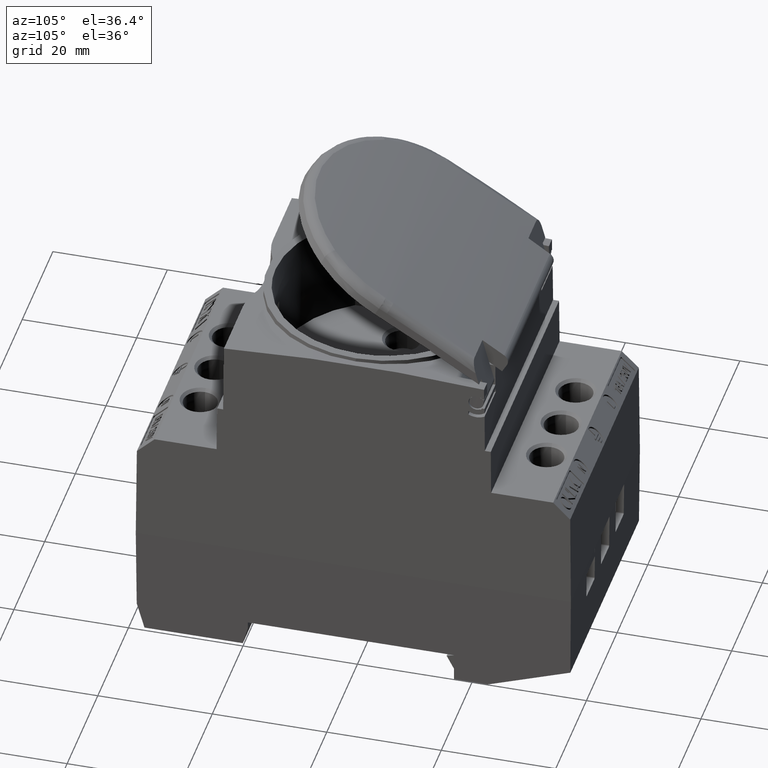
[diagram: clean part render]
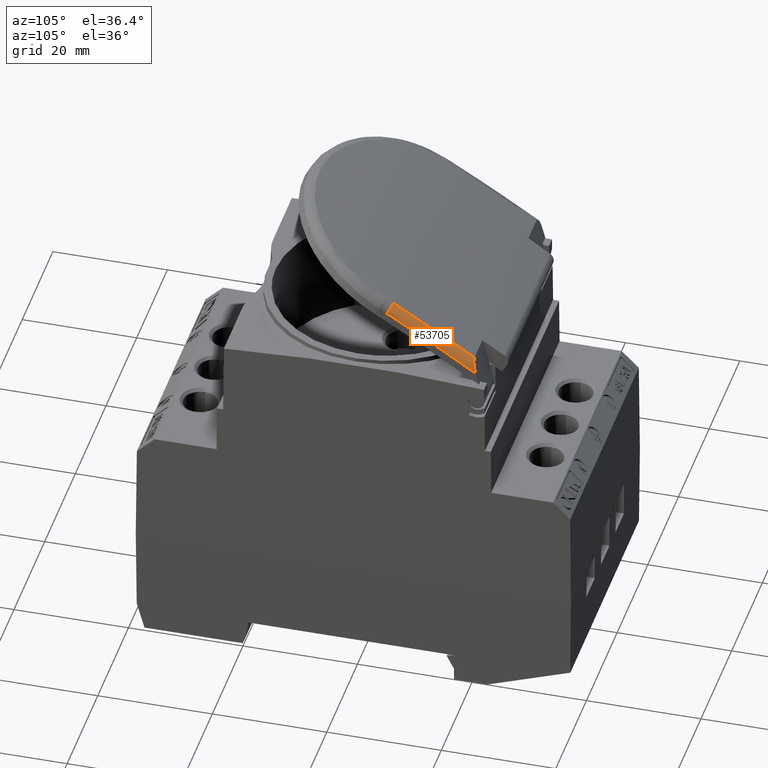
[diagram: same view with one face highlighted and labeled with its STEP entity id]
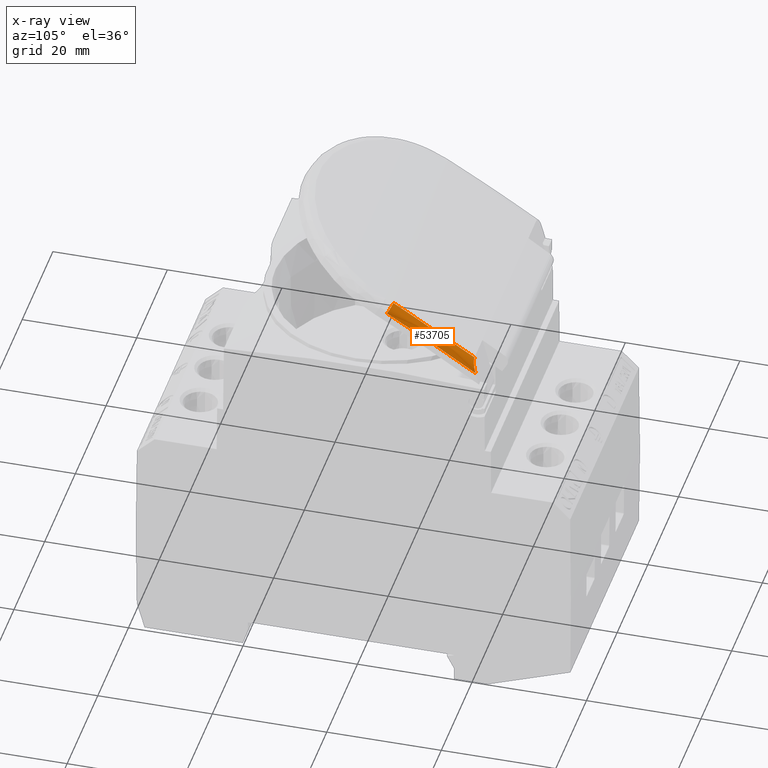
[diagram: x-ray of the same camera — body ghosted, the highlighted face saturated]
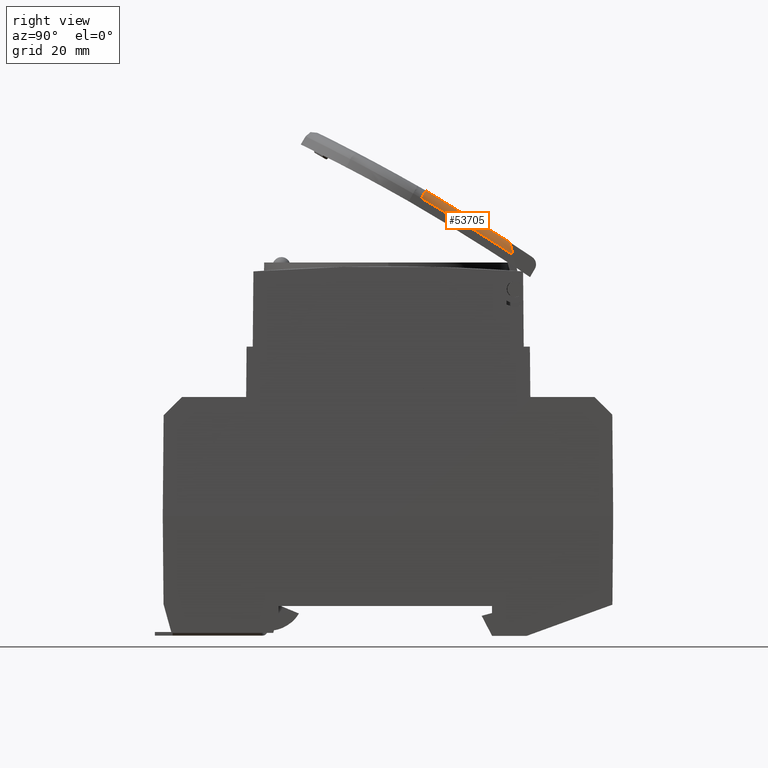
[diagram: same view with one face highlighted and labeled with its STEP entity id]
A machine part, auxiliary view. The second image highlights one B-rep face of the part: STEP entity #53705.
The next image is the same camera in x-ray: the body ghosted, the highlighted face saturated — about 0% of this face is hidden behind the body in this view.
A second angle (right view) of the same face is appended — the face is thin or edge-on in the first view.
In plain terms, the highlighted face is a freeform B-spline surface patch.
Its self-contained STEP definition (entity closure, byte-faithful):
#1464 = EDGE_LOOP ( 'NONE', ( #44498, #44500, #44546, #44497 ) ) ;
#1836 = AXIS2_PLACEMENT_3D ( 'NONE', #9199, #9192, #9179 ) ;
#1881 = CIRCLE ( 'NONE', #1836, 1.500000000000008700 ) ;
#3327 = B_SPLINE_CURVE_WITH_KNOTS ( 'NONE', 3,
 ( #49380, #49396, #49403, #49382 ),
 .UNSPECIFIED., .F., .F.,
 ( 4, 4 ),
 ( 0.0000000000000000000, 1.000000000000000000 ),
 .UNSPECIFIED. ) ;
#3363 = B_SPLINE_CURVE_WITH_KNOTS ( 'NONE', 3,
 ( #38545, #38540, #38562, #38558 ),
 .UNSPECIFIED., .F., .F.,
 ( 4, 4 ),
 ( 0.0000000000000000000, 1.000000000000000000 ),
 .UNSPECIFIED. ) ;
#3365 = B_SPLINE_CURVE_WITH_KNOTS ( 'NONE', 3,
 ( #38682, #38690, #38735, #38715, #38717, #38736, #38716, #38722, #38730, #38725, #38737, #38718, #38729, #38719, #38721, #38723, #38720, #38724, #38726, #38727, #38728, #38731, #38732, #38733, #38741, #38755, #38742, #38743, #38748, #38753, #38752, #38758, #38738, #38754, #38750, #38749 ),
 .UNSPECIFIED., .F., .F.,
 ( 4, 2, 2, 2, 1, 2, 2, 2, 2, 1, 1, 1, 2, 2, 2, 2, 1, 1, 2, 2, 4 ),
 ( 0.0000000000000000000, 0.1249999999999825400, 0.1874999999999716600, 0.2187499999999661900, 0.2343749999999633900, 0.2421874999999622800, 0.2499999999999612000, 0.3749999999999284500, 0.4374999999999120100, 0.4687499999999047400, 0.4843749999999010200, 0.4921874999998992500, 0.4960937499998996900, 0.4999999999999001400, 0.6249999999999120700, 0.6874999999999204000, 0.7187499999999242800, 0.7343749999999261700, 0.7421874999999273900, 0.7499999999999286100, 1.000000000000000000 ),
 .UNSPECIFIED. ) ;
#7352 = VERTEX_POINT ( 'NONE', #30980 ) ;
#7382 = VERTEX_POINT ( 'NONE', #30992 ) ;
#9179 = DIRECTION ( 'NONE',  ( 0.0000000000000000000, 0.4999999999997049600, 0.8660254037846089000 ) ) ;
#9192 = DIRECTION ( 'NONE',  ( -1.671779591027735500E-015, 0.8660254037846089000, -0.4999999999997051200 ) ) ;
#9199 = CARTESIAN_POINT ( 'NONE',  ( 20.11149769715314400, 5.567389639894168200, 28.44711598153101300 ) ) ;
#16329 = EDGE_CURVE ( 'NONE', #7352, #7382, #1881, .T. ) ;
#17633 = EDGE_CURVE ( 'NONE', #7352, #36606, #3327, .T. ) ;
#17664 = EDGE_CURVE ( 'NONE', #7382, #36638, #3363, .T. ) ;
#17683 = EDGE_CURVE ( 'NONE', #36638, #36606, #3365, .T. ) ;
#30980 = CARTESIAN_POINT ( 'NONE',  ( 20.11149769715346400, 6.317389639894067900, 29.74615408720781000 ) ) ;
#30992 = CARTESIAN_POINT ( 'NONE',  ( 21.61144058174941000, 5.573934541518228900, 28.45845208367377700 ) ) ;
#32391 = CARTESIAN_POINT ( 'NONE',  ( 21.61624503073570500, 21.07185844936508100, 18.87501810916420600 ) ) ;
#32417 = CARTESIAN_POINT ( 'NONE',  ( 20.11546422260768100, 20.49329404908099400, 21.03424850293953700 ) ) ;
#32611 =( BOUNDED_SURFACE ( )  B_SPLINE_SURFACE ( 3, 2, ( 
 ( #59797, #60425, #60584 ),
 ( #60624, #60697, #60802 ),
 ( #60818, #60820, #60873 ),
 ( #60961, #59748, #59755 ) ),
 .UNSPECIFIED., .F., .F., .F. ) 
 B_SPLINE_SURFACE_WITH_KNOTS ( ( 4, 4 ),
 ( 3, 3 ),
 ( 0.0000000000000000000, 0.06079837920972024100 ),
 ( 0.0000000000000000000, 1.000000000000000000 ),
 .UNSPECIFIED. ) 
 GEOMETRIC_REPRESENTATION_ITEM ( )  RATIONAL_B_SPLINE_SURFACE ( (
 ( 1.000000000000000000, 0.7101853756232864300, 1.000000000000000000),
 ( 1.000000000000000000, 0.7101853756232864300, 1.000000000000000000),
 ( 1.000000000000000000, 0.7101796997576754800, 1.000000000000000000),
 ( 1.000000000000000000, 0.7101796997576754800, 1.000000000000000000) ) ) 
 REPRESENTATION_ITEM ( '' )  SURFACE ( )  );
#36606 = VERTEX_POINT ( 'NONE', #32417 ) ;
#36638 = VERTEX_POINT ( 'NONE', #32391 ) ;
#38540 = CARTESIAN_POINT ( 'NONE',  ( 21.61144058175224800, 10.83486926516407900, 25.42105000441343100 ) ) ;
#38545 = CARTESIAN_POINT ( 'NONE',  ( 21.61144058174941000, 5.573934541518228900, 28.45845208367377700 ) ) ;
#38558 = CARTESIAN_POINT ( 'NONE',  ( 21.61624503073570500, 21.07185844936508100, 18.87501810916420600 ) ) ;
#38562 = CARTESIAN_POINT ( 'NONE',  ( 21.61304304422152700, 16.00398424792255300, 22.22462933301307000 ) ) ;
#38682 = CARTESIAN_POINT ( 'NONE',  ( 21.61624503073570500, 21.07185844936508100, 18.87501810916420600 ) ) ;
#38690 = CARTESIAN_POINT ( 'NONE',  ( 21.61582752215776900, 21.05434563870697700, 18.94037200634393500 ) ) ;
#38715 = CARTESIAN_POINT ( 'NONE',  ( 21.59708378592926100, 20.98219996765944400, 19.20855909315105200 ) ) ;
#38716 = CARTESIAN_POINT ( 'NONE',  ( 21.56531885854216700, 20.92584450764114800, 19.42054550328121100 ) ) ;
#38717 = CARTESIAN_POINT ( 'NONE',  ( 21.58926823269134900, 20.96474511656315100, 19.27427544248018200 ) ) ;
#38718 = CARTESIAN_POINT ( 'NONE',  ( 21.53249220912774600, 20.88452693593722400, 19.57427008260095000 ) ) ;
#38719 = CARTESIAN_POINT ( 'NONE',  ( 21.45598559853526400, 20.81182018775782100, 19.84491575792930700 ) ) ;
#38720 = CARTESIAN_POINT ( 'NONE',  ( 21.33036769015308600, 20.73396562014975300, 20.13621470376220300 ) ) ;
#38721 = CARTESIAN_POINT ( 'NONE',  ( 21.38898044519227800, 20.76742163390919400, 20.01129555759421300 ) ) ;
#38722 = CARTESIAN_POINT ( 'NONE',  ( 21.55358929597173300, 20.91003569344594800, 19.47964295677203600 ) ) ;
#38723 = CARTESIAN_POINT ( 'NONE',  ( 21.36576073228237100, 20.75350704140457500, 20.06332534817541100 ) ) ;
#38724 = CARTESIAN_POINT ( 'NONE',  ( 21.31252939032658500, 20.72452891440863000, 20.17137269239163200 ) ) ;
#38725 = CARTESIAN_POINT ( 'NONE',  ( 21.54030632492820300, 20.89358207921558700, 19.54081439487659100 ) ) ;
#38726 = CARTESIAN_POINT ( 'NONE',  ( 21.29162486089559200, 20.71411761757670400, 20.21015658702718600 ) ) ;
#38727 = CARTESIAN_POINT ( 'NONE',  ( 21.28116757464483300, 20.70906404842148500, 20.22899361558445700 ) ) ;
#38728 = CARTESIAN_POINT ( 'NONE',  ( 21.27668673052482300, 20.70693110584201000, 20.23694811471059700 ) ) ;
#38729 = CARTESIAN_POINT ( 'NONE',  ( 21.49710006214648700, 20.84488314421294700, 19.72015957059713600 ) ) ;
#38730 = CARTESIAN_POINT ( 'NONE',  ( 21.54729828518769400, 20.90195100124808600, 19.50978995680885600 ) ) ;
#38731 = CARTESIAN_POINT ( 'NONE',  ( 21.27369990086093000, 20.70551648276075300, 20.24222482520501400 ) ) ;
#38732 = CARTESIAN_POINT ( 'NONE',  ( 21.27287101225756100, 20.70512431188862500, 20.24368768860573600 ) ) ;
#38733 = CARTESIAN_POINT ( 'NONE',  ( 21.20168220785975100, 20.67174721466623300, 20.36824413602715500 ) ) ;
#38735 = CARTESIAN_POINT ( 'NONE',  ( 21.61364611890473200, 21.02951323516746400, 19.03153064978305800 ) ) ;
#38736 = CARTESIAN_POINT ( 'NONE',  ( 21.57200316013862100, 20.93590409349502900, 19.38274430963511100 ) ) ;
#38737 = CARTESIAN_POINT ( 'NONE',  ( 21.53548219738788900, 20.88793776533284700, 19.56168961048115300 ) ) ;
#38738 = CARTESIAN_POINT ( 'NONE',  ( 20.80734931687350900, 20.55888420135396200, 20.78946227756197000 ) ) ;
#38741 = CARTESIAN_POINT ( 'NONE',  ( 21.12539412759376800, 20.64356775714107100, 20.47460567278083200 ) ) ;
#38742 = CARTESIAN_POINT ( 'NONE',  ( 20.96535070722007500, 20.59564709501135100, 20.65318938108721300 ) ) ;
#38743 = CARTESIAN_POINT ( 'NONE',  ( 20.90384599739455500, 20.58022333493278900, 20.71031888949016400 ) ) ;
#38748 = CARTESIAN_POINT ( 'NONE',  ( 20.87295374548760000, 20.57288151704746300, 20.73748624931252100 ) ) ;
#38749 = CARTESIAN_POINT ( 'NONE',  ( 20.11546422260768100, 20.49329404908099400, 21.03424850293953700 ) ) ;
#38750 = CARTESIAN_POINT ( 'NONE',  ( 20.34377688604436000, 20.49332610245955500, 21.03422678218787200 ) ) ;
#38752 = CARTESIAN_POINT ( 'NONE',  ( 20.82130532915384100, 20.56174795800077200, 20.77880285312523200 ) ) ;
#38753 = CARTESIAN_POINT ( 'NONE',  ( 20.83680613549347500, 20.56498552459793300, 20.76676702485555000 ) ) ;
#38754 = CARTESIAN_POINT ( 'NONE',  ( 20.58583134714421400, 20.51473902258748800, 20.95417486802563900 ) ) ;
#38755 = CARTESIAN_POINT ( 'NONE',  ( 21.00598338314857100, 20.60691319472153900, 20.61137160267651000 ) ) ;
#38758 = CARTESIAN_POINT ( 'NONE',  ( 20.81097097681064100, 20.55962246325857400, 20.78671322089464700 ) ) ;
#44497 = ORIENTED_EDGE ( 'NONE', *, *, #17664, .T. ) ;
#44498 = ORIENTED_EDGE ( 'NONE', *, *, #17683, .T. ) ;
#44500 = ORIENTED_EDGE ( 'NONE', *, *, #17633, .F. ) ;
#44546 = ORIENTED_EDGE ( 'NONE', *, *, #16329, .T. ) ;
#49380 = CARTESIAN_POINT ( 'NONE',  ( 20.11149769715346400, 6.317389639894067900, 29.74615408720781000 ) ) ;
#49382 = CARTESIAN_POINT ( 'NONE',  ( 20.11546422260768100, 20.49329404908099400, 21.03424850293953700 ) ) ;
#49396 = CARTESIAN_POINT ( 'NONE',  ( 20.11149779245209900, 11.12003198465186500, 26.97334723664269200 ) ) ;
#49403 = CARTESIAN_POINT ( 'NONE',  ( 20.11281996705087100, 15.84774829189306700, 24.06798441570125700 ) ) ;
#53705 = ADVANCED_FACE ( 'NONE', ( #59837 ), #32611, .T. ) ;
#59748 = CARTESIAN_POINT ( 'NONE',  ( 21.60335053877222600, 21.98341170316091500, 20.05487472350630200 ) ) ;
#59755 = CARTESIAN_POINT ( 'NONE',  ( 20.11635995464886400, 21.98406933134652200, 20.05443972136071600 ) ) ;
#59797 = CARTESIAN_POINT ( 'NONE',  ( 21.61144058174940600, 5.573934541517950900, 28.45845208367395100 ) ) ;
#59837 = FACE_OUTER_BOUND ( 'NONE', #1464, .T. ) ;
#60425 = CARTESIAN_POINT ( 'NONE',  ( 21.59846451304560900, 6.317389639893730400, 29.74615408720793400 ) ) ;
#60584 = CARTESIAN_POINT ( 'NONE',  ( 20.11149769715314800, 6.317389639893729500, 29.74615408720793400 ) ) ;
#60624 = CARTESIAN_POINT ( 'NONE',  ( 21.61144058175226600, 10.86643486045960400, 25.40282559947018400 ) ) ;
#60697 = CARTESIAN_POINT ( 'NONE',  ( 21.59846451304560900, 11.63598868795292100, 26.67545949471307100 ) ) ;
#60802 = CARTESIAN_POINT ( 'NONE',  ( 20.11149769716374900, 11.63621644050229300, 26.67532800210599900 ) ) ;
#60818 = CARTESIAN_POINT ( 'NONE',  ( 21.61306233145180800, 16.06601029657041100, 22.18626657614499800 ) ) ;
#60820 = CARTESIAN_POINT ( 'NONE',  ( 21.60009419013971100, 16.86120862457308800, 23.44304569818436300 ) ) ;
#60873 = CARTESIAN_POINT ( 'NONE',  ( 20.11311944687066200, 16.86165612108231900, 23.44276884997473300 ) ) ;
#60961 = CARTESIAN_POINT ( 'NONE',  ( 21.61630283924512200, 21.16306920892461500, 18.81470858583125900 ) ) ;